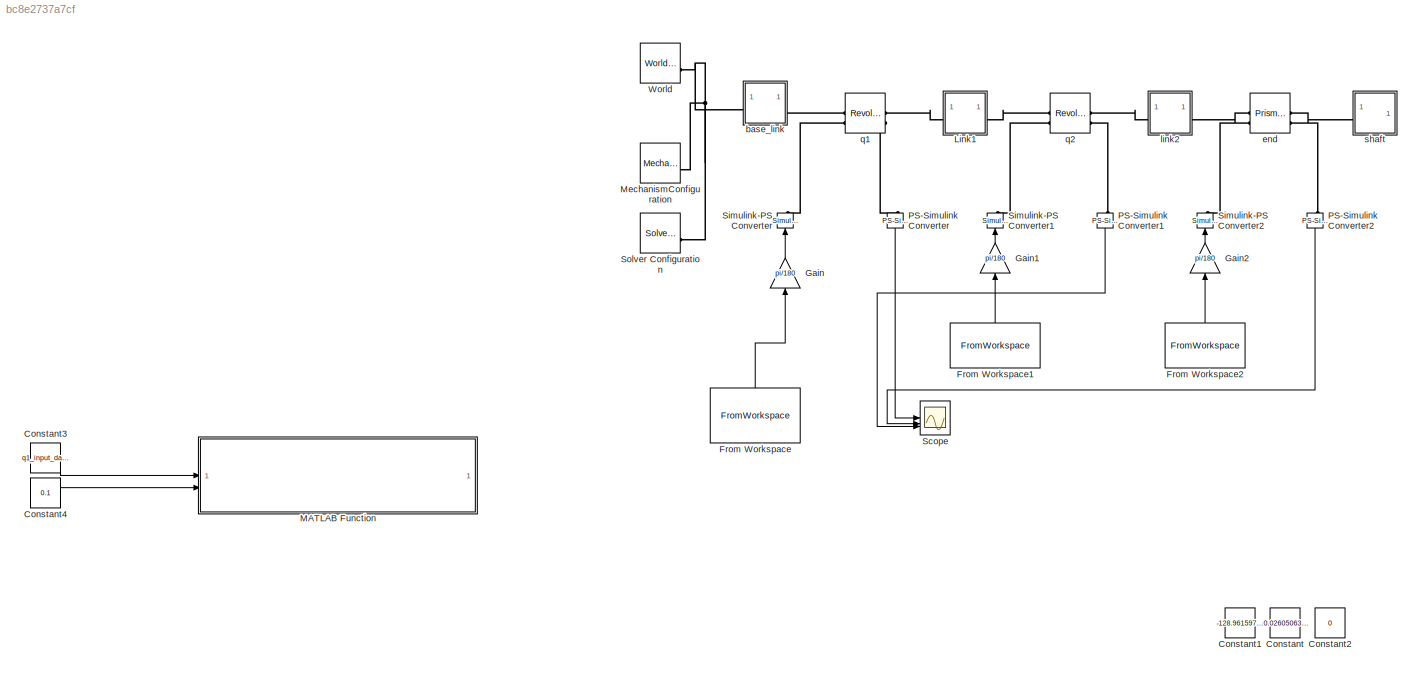
MODEL slx_bc8e2737a7cf
KIND model
CONFIG AbsTol = auto
CONFIG EnableMultiTasking = off
CONFIG FixedStep = 0.01
CONFIG MaxStep = auto
CONFIG MinStep = auto
CONFIG RelTol = 1e-3
CONFIG SampleTimeConstraint = Unconstrained
CONFIG SolverName = FixedStepAuto
CONFIG StartTime = 0.0
CONFIG StopTime = inf
BLOCK [Constant] Constant
  Commented = on
  NameLocation = right
  Value = -0.026050638
BLOCK [Constant] Constant1
  Commented = on
  NameLocation = right
  Value = -128.9615976
BLOCK [Constant] Constant2
  Commented = on
  NameLocation = right
  Value = 0
BLOCK [Constant] Constant3
  Commented = on
  Value = q1_input_data
BLOCK [Constant] Constant4
  Commented = on
  Value = 0.1
BLOCK [FromWorkspace] From Workspace
  Interpolate = off
  NameLocation = right
  OutputAfterFinalValue = Holding final value
  VariableName = q1_input_data
  ZeroCross = off
BLOCK [FromWorkspace] From Workspace1
  Interpolate = off
  NameLocation = right
  OutputAfterFinalValue = Holding final value
  VariableName = q2_input_data
BLOCK [FromWorkspace] From Workspace2
  Interpolate = off
  NameLocation = right
  OutputAfterFinalValue = Holding final value
  VariableName = q3_input_data
BLOCK [Gain] Gain
  Gain = pi/180
  NameLocation = right
BLOCK [Gain] Gain1
  Gain = pi/180
  NameLocation = right
BLOCK [Gain] Gain2
  Gain = pi/180
  NameLocation = right
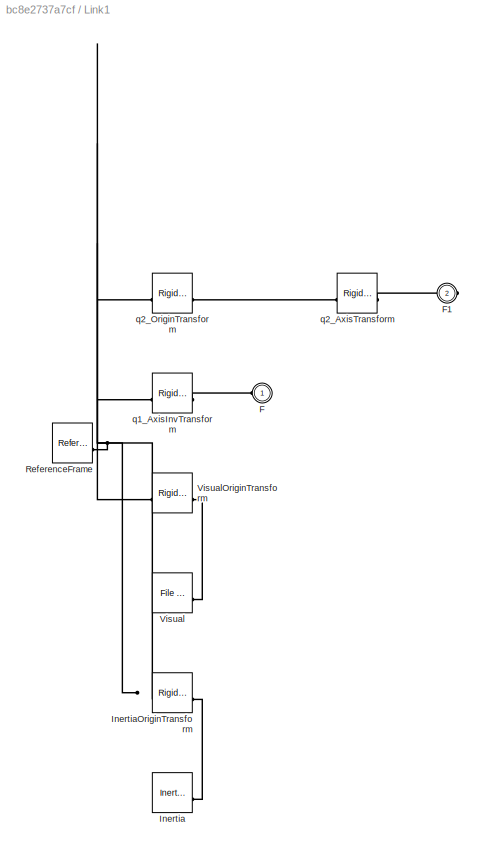
BLOCK [SubSystem] Link1
BLOCK [PMIOPort] Link1/F
  Side = Left
BLOCK [PMIOPort] Link1/F1
  Port = 2
  Side = Right
BLOCK [Reference] Link1/Inertia  REF=sm_lib/Body Elements/Inertia
  SourceBlock = sm_lib/Body Elements/Inertia
  SourceType = Inertia
BLOCK [Reference] Link1/InertiaOriginTransform  REF=sm_lib/Frames and
Transforms/Rigid
Transform
  SourceBlock = sm_lib/Frames and\nTransforms/Rigid\nTransform
  SourceType = Rigid\nTransform
BLOCK [Reference] Link1/ReferenceFrame  REF=sm_lib/Frames and
Transforms/Reference
Frame
  SourceBlock = sm_lib/Frames and\nTransforms/Reference\nFrame
  SourceType = Reference\nFrame
BLOCK [Reference] Link1/Visual  REF=sm_lib/Body Elements/File Solid
  SourceBlock = sm_lib/Body Elements/File Solid
  SourceType = File Solid
BLOCK [Reference] Link1/VisualOriginTransform  REF=sm_lib/Frames and
Transforms/Rigid
Transform
  SourceBlock = sm_lib/Frames and\nTransforms/Rigid\nTransform
  SourceType = Rigid\nTransform
BLOCK [Reference] Link1/q1_AxisInvTransform  REF=sm_lib/Frames and
Transforms/Rigid
Transform
  SourceBlock = sm_lib/Frames and\nTransforms/Rigid\nTransform
  SourceType = Rigid\nTransform
BLOCK [Reference] Link1/q2_AxisTransform  REF=sm_lib/Frames and
Transforms/Rigid
Transform
  SourceBlock = sm_lib/Frames and\nTransforms/Rigid\nTransform
  SourceType = Rigid\nTransform
BLOCK [Reference] Link1/q2_OriginTransform  REF=sm_lib/Frames and
Transforms/Rigid
Transform
  SourceBlock = sm_lib/Frames and\nTransforms/Rigid\nTransform
  SourceType = Rigid\nTransform
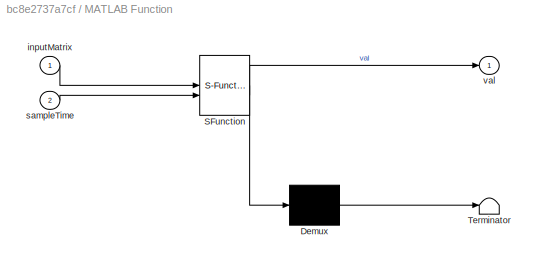
BLOCK [SubSystem] MATLAB Function
  Commented = on
  ErrorFcn = Stateflow.Translate.translate
  PermitHierarchicalResolution = ExplicitOnly
  SFBlockType = MATLAB Function
  TreatAsAtomicUnit = on
BLOCK [Demux] MATLAB Function/ Demux 
  Outputs = 1
BLOCK [S-Function] MATLAB Function/ SFunction 
  EnableBusSupport = on
  FunctionName = sf_sfun
  PortCounts = [2 2]
  SFcnIsStateOwnerBlock = off
  SFunctionDeploymentMode = off
  Tag = Stateflow S-Function 2
BLOCK [Terminator] MATLAB Function/ Terminator 
BLOCK [Inport] MATLAB Function/inputMatrix
BLOCK [Inport] MATLAB Function/sampleTime
  Port = 2
BLOCK [Outport] MATLAB Function/val
BLOCK [Reference] MechanismConfiguration  REF=sm_lib/Utilities/Mechanism
Configuration
  SourceBlock = sm_lib/Utilities/Mechanism\nConfiguration
  SourceType = Mechanism\nConfiguration
BLOCK [Reference] PS-Simulink Converter  REF=nesl_utility/PS-Simulink
Converter
  NameLocation = left
  SourceBlock = nesl_utility/PS-Simulink\nConverter
  SourceType = PS-Simulink\nConverter
BLOCK [Reference] PS-Simulink Converter1  REF=nesl_utility/PS-Simulink
Converter
  NameLocation = left
  SourceBlock = nesl_utility/PS-Simulink\nConverter
  SourceType = PS-Simulink\nConverter
BLOCK [Reference] PS-Simulink Converter2  REF=nesl_utility/PS-Simulink
Converter
  NameLocation = left
  SourceBlock = nesl_utility/PS-Simulink\nConverter
  SourceType = PS-Simulink\nConverter
BLOCK [Scope] Scope
  Floating = off
  NumInputPorts = 3
  ScopeSpecificationString = Simulink.scopes.TimeScopeBlockCfg('CurrentConfiguration', extmgr.ConfigurationSet(extmgr.Configuration('Core','General UI',true),extmgr.Configuration('Core','Source UI',true),extmgr.Configuration('Sources','WiredSimulink',true),extmgr.Configuration('Visuals','Time Domain',true,'SerializedDisplays',{struct('MinYLimReal','-0.00552','MaxYLimReal','0.92235','YLabelReal','','MinYLimMag','0.00000','MaxY...<+1420ch>
BLOCK [Reference] Simulink-PS Converter  REF=nesl_utility/Simulink-PS
Converter
  NameLocation = right
  SourceBlock = nesl_utility/Simulink-PS\nConverter
  SourceType = Simulink-PS\nConverter
BLOCK [Reference] Simulink-PS Converter1  REF=nesl_utility/Simulink-PS
Converter
  NameLocation = right
  SourceBlock = nesl_utility/Simulink-PS\nConverter
  SourceType = Simulink-PS\nConverter
BLOCK [Reference] Simulink-PS Converter2  REF=nesl_utility/Simulink-PS
Converter
  NameLocation = right
  SourceBlock = nesl_utility/Simulink-PS\nConverter
  SourceType = Simulink-PS\nConverter
BLOCK [Reference] Solver Configuration  REF=nesl_utility/Solver
Configuration
  SourceBlock = nesl_utility/Solver\nConfiguration
  SourceType = Solver\nConfiguration
BLOCK [Reference] World  REF=sm_lib/Frames and
Transforms/World Frame
  SourceBlock = sm_lib/Frames and\nTransforms/World Frame
  SourceType = World Frame
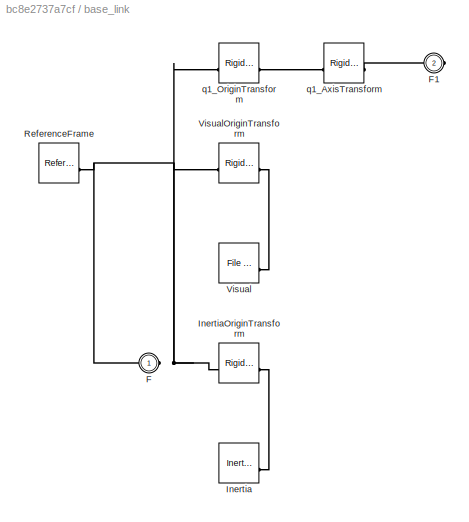
BLOCK [SubSystem] base_link
BLOCK [PMIOPort] base_link/F
  Side = Left
BLOCK [PMIOPort] base_link/F1
  Port = 2
  Side = Right
BLOCK [Reference] base_link/Inertia  REF=sm_lib/Body Elements/Inertia
  SourceBlock = sm_lib/Body Elements/Inertia
  SourceType = Inertia
BLOCK [Reference] base_link/InertiaOriginTransform  REF=sm_lib/Frames and
Transforms/Rigid
Transform
  SourceBlock = sm_lib/Frames and\nTransforms/Rigid\nTransform
  SourceType = Rigid\nTransform
BLOCK [Reference] base_link/ReferenceFrame  REF=sm_lib/Frames and
Transforms/Reference
Frame
  SourceBlock = sm_lib/Frames and\nTransforms/Reference\nFrame
  SourceType = Reference\nFrame
BLOCK [Reference] base_link/Visual  REF=sm_lib/Body Elements/File Solid
  SourceBlock = sm_lib/Body Elements/File Solid
  SourceType = File Solid
BLOCK [Reference] base_link/VisualOriginTransform  REF=sm_lib/Frames and
Transforms/Rigid
Transform
  SourceBlock = sm_lib/Frames and\nTransforms/Rigid\nTransform
  SourceType = Rigid\nTransform
BLOCK [Reference] base_link/q1_AxisTransform  REF=sm_lib/Frames and
Transforms/Rigid
Transform
  SourceBlock = sm_lib/Frames and\nTransforms/Rigid\nTransform
  SourceType = Rigid\nTransform
BLOCK [Reference] base_link/q1_OriginTransform  REF=sm_lib/Frames and
Transforms/Rigid
Transform
  SourceBlock = sm_lib/Frames and\nTransforms/Rigid\nTransform
  SourceType = Rigid\nTransform
BLOCK [Reference] end  REF=sm_lib/Joints/Prismatic
Joint
  SourceBlock = sm_lib/Joints/Prismatic\nJoint
  SourceType = Prismatic\nJoint
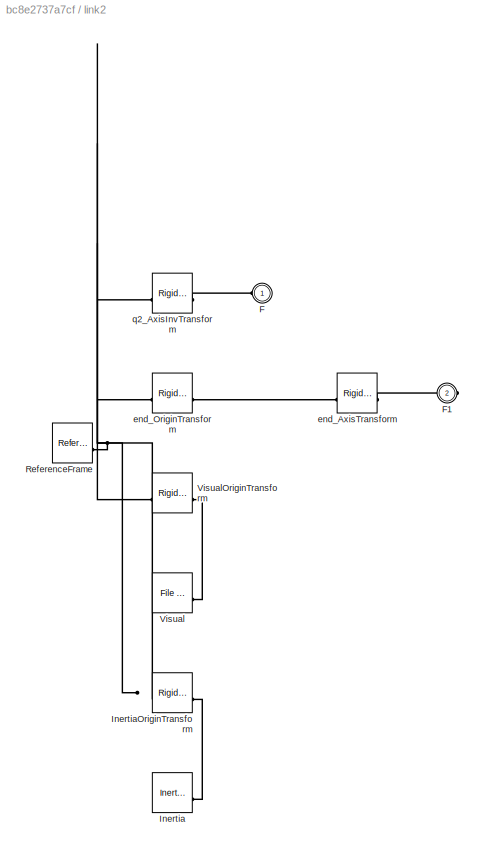
BLOCK [SubSystem] link2
BLOCK [PMIOPort] link2/F
  Side = Left
BLOCK [PMIOPort] link2/F1
  Port = 2
  Side = Right
BLOCK [Reference] link2/Inertia  REF=sm_lib/Body Elements/Inertia
  SourceBlock = sm_lib/Body Elements/Inertia
  SourceType = Inertia
BLOCK [Reference] link2/InertiaOriginTransform  REF=sm_lib/Frames and
Transforms/Rigid
Transform
  SourceBlock = sm_lib/Frames and\nTransforms/Rigid\nTransform
  SourceType = Rigid\nTransform
BLOCK [Reference] link2/ReferenceFrame  REF=sm_lib/Frames and
Transforms/Reference
Frame
  SourceBlock = sm_lib/Frames and\nTransforms/Reference\nFrame
  SourceType = Reference\nFrame
BLOCK [Reference] link2/Visual  REF=sm_lib/Body Elements/File Solid
  SourceBlock = sm_lib/Body Elements/File Solid
  SourceType = File Solid
BLOCK [Reference] link2/VisualOriginTransform  REF=sm_lib/Frames and
Transforms/Rigid
Transform
  SourceBlock = sm_lib/Frames and\nTransforms/Rigid\nTransform
  SourceType = Rigid\nTransform
BLOCK [Reference] link2/end_AxisTransform  REF=sm_lib/Frames and
Transforms/Rigid
Transform
  SourceBlock = sm_lib/Frames and\nTransforms/Rigid\nTransform
  SourceType = Rigid\nTransform
BLOCK [Reference] link2/end_OriginTransform  REF=sm_lib/Frames and
Transforms/Rigid
Transform
  SourceBlock = sm_lib/Frames and\nTransforms/Rigid\nTransform
  SourceType = Rigid\nTransform
BLOCK [Reference] link2/q2_AxisInvTransform  REF=sm_lib/Frames and
Transforms/Rigid
Transform
  SourceBlock = sm_lib/Frames and\nTransforms/Rigid\nTransform
  SourceType = Rigid\nTransform
BLOCK [Reference] q1  REF=sm_lib/Joints/Revolute Joint
  SourceBlock = sm_lib/Joints/Revolute Joint
  SourceType = Revolute Joint
BLOCK [Reference] q2  REF=sm_lib/Joints/Revolute Joint
  SourceBlock = sm_lib/Joints/Revolute Joint
  SourceType = Revolute Joint
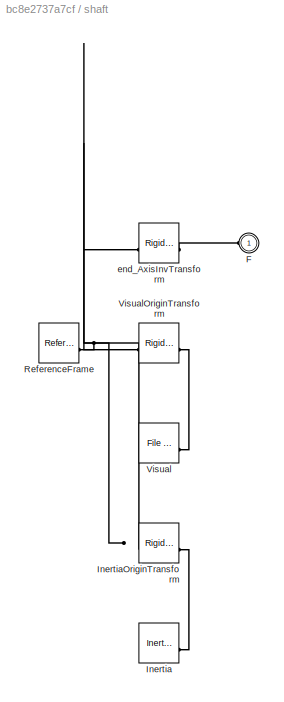
BLOCK [SubSystem] shaft
BLOCK [PMIOPort] shaft/F
  Side = Left
BLOCK [Reference] shaft/Inertia  REF=sm_lib/Body Elements/Inertia
  SourceBlock = sm_lib/Body Elements/Inertia
  SourceType = Inertia
BLOCK [Reference] shaft/InertiaOriginTransform  REF=sm_lib/Frames and
Transforms/Rigid
Transform
  SourceBlock = sm_lib/Frames and\nTransforms/Rigid\nTransform
  SourceType = Rigid\nTransform
BLOCK [Reference] shaft/ReferenceFrame  REF=sm_lib/Frames and
Transforms/Reference
Frame
  SourceBlock = sm_lib/Frames and\nTransforms/Reference\nFrame
  SourceType = Reference\nFrame
BLOCK [Reference] shaft/Visual  REF=sm_lib/Body Elements/File Solid
  SourceBlock = sm_lib/Body Elements/File Solid
  SourceType = File Solid
BLOCK [Reference] shaft/VisualOriginTransform  REF=sm_lib/Frames and
Transforms/Rigid
Transform
  SourceBlock = sm_lib/Frames and\nTransforms/Rigid\nTransform
  SourceType = Rigid\nTransform
BLOCK [Reference] shaft/end_AxisInvTransform  REF=sm_lib/Frames and
Transforms/Rigid
Transform
  SourceBlock = sm_lib/Frames and\nTransforms/Rigid\nTransform
  SourceType = Rigid\nTransform
LINE Constant3:1 -> MATLAB Function:1
LINE Constant4:1 -> MATLAB Function:2
LINE From Workspace1:1 -> Gain1:1
LINE From Workspace2:1 -> Gain2:1
LINE From Workspace:1 -> Gain:1
LINE Gain1:1 -> Simulink-PS Converter1:1
LINE Gain2:1 -> Simulink-PS Converter2:1
LINE Gain:1 -> Simulink-PS Converter:1
LINE PS-Simulink Converter1:1 -> Scope:3
LINE PS-Simulink Converter2:1 -> Scope:2
LINE PS-Simulink Converter:1 -> Scope:1
PLINE Link1/F1:RConn1 -- Link1/q2_AxisTransform:RConn1
PLINE Link1/F:RConn1 -- Link1/q1_AxisInvTransform:RConn1
PLINE Link1/Inertia:RConn1 -- Link1/InertiaOriginTransform:RConn1
PNET net1: Link1/InertiaOriginTransform:LConn1 -- Link1/ReferenceFrame:RConn1 -- Link1/VisualOriginTransform:LConn1 -- Link1/q1_AxisInvTransform:LConn1 -- Link1/q2_OriginTransform:LConn1
PLINE Link1/Visual:RConn1 -- Link1/VisualOriginTransform:RConn1
PLINE Link1/q2_AxisTransform:LConn1 -- Link1/q2_OriginTransform:RConn1
PLINE Link1:LConn1 -- q1:RConn1
PLINE Link1:RConn1 -- q2:LConn1
PNET net2: MechanismConfiguration:RConn1 -- Solver Configuration:RConn1 -- World:RConn1 -- base_link:LConn1
PLINE PS-Simulink Converter1:LConn1 -- q2:RConn2
PLINE PS-Simulink Converter2:LConn1 -- end:RConn2
PLINE PS-Simulink Converter:LConn1 -- q1:RConn2
PLINE Simulink-PS Converter1:RConn1 -- q2:LConn2
PLINE Simulink-PS Converter2:RConn1 -- end:LConn2
PLINE Simulink-PS Converter:RConn1 -- q1:LConn2
PLINE base_link/F1:RConn1 -- base_link/q1_AxisTransform:RConn1
PNET net3: base_link/F:RConn1 -- base_link/InertiaOriginTransform:LConn1 -- base_link/ReferenceFrame:RConn1 -- base_link/VisualOriginTransform:LConn1 -- base_link/q1_OriginTransform:LConn1
PLINE base_link/Inertia:RConn1 -- base_link/InertiaOriginTransform:RConn1
PLINE base_link/Visual:RConn1 -- base_link/VisualOriginTransform:RConn1
PLINE base_link/q1_AxisTransform:LConn1 -- base_link/q1_OriginTransform:RConn1
PLINE base_link:RConn1 -- q1:LConn1
PLINE end:LConn1 -- link2:RConn1
PLINE end:RConn1 -- shaft:LConn1
PLINE link2/F1:RConn1 -- link2/end_AxisTransform:RConn1
PLINE link2/F:RConn1 -- link2/q2_AxisInvTransform:RConn1
PLINE link2/Inertia:RConn1 -- link2/InertiaOriginTransform:RConn1
PNET net4: link2/InertiaOriginTransform:LConn1 -- link2/ReferenceFrame:RConn1 -- link2/VisualOriginTransform:LConn1 -- link2/end_OriginTransform:LConn1 -- link2/q2_AxisInvTransform:LConn1
PLINE link2/Visual:RConn1 -- link2/VisualOriginTransform:RConn1
PLINE link2/end_AxisTransform:LConn1 -- link2/end_OriginTransform:RConn1
PLINE link2:LConn1 -- q2:RConn1
PLINE shaft/F:RConn1 -- shaft/end_AxisInvTransform:RConn1
PLINE shaft/Inertia:RConn1 -- shaft/InertiaOriginTransform:RConn1
PNET net5: shaft/InertiaOriginTransform:LConn1 -- shaft/ReferenceFrame:RConn1 -- shaft/VisualOriginTransform:LConn1 -- shaft/end_AxisInvTransform:LConn1
PLINE shaft/Visual:RConn1 -- shaft/VisualOriginTransform:RConn1
note: PNET lines group multi-terminal physical nets as a canonical sorted terminal list (undirected conserving connections); 2-terminal nets keep the pairwise PLINE form
CHART MATLAB Function states=1 transitions=1
  STATE_LABEL 'eML_blk_kernel()'
  STATE_LABEL 'SCRIPT:\nfunction val = repeatingSequenceStair(inputMatrix, sampleTime)\n    % REPEATINGSEQUENCESTAIR Simulates a Repeating Sequence Stair block\n    % for a 5x2 input matrix, where time progresses and sends corresponding row values.\n    %\n    % Inputs:\n    %   - inputMatrix: A 5x2 matrix with time steps in the first column and values in the second.\n    %   - sampleTime: The time interval for each st...<+848ch>'
CHART  states=0 transitions=0
